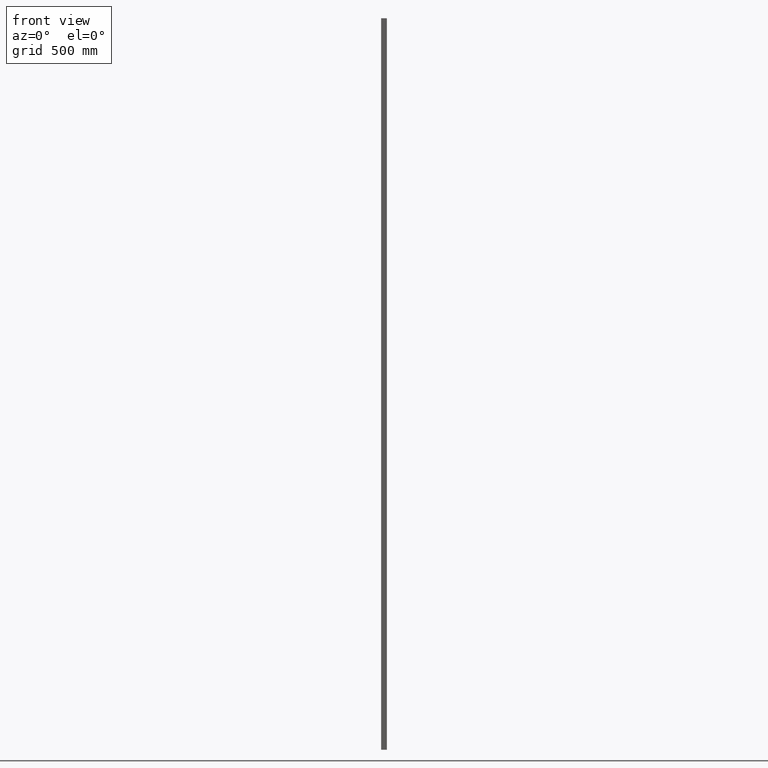
[diagram: clean part render]
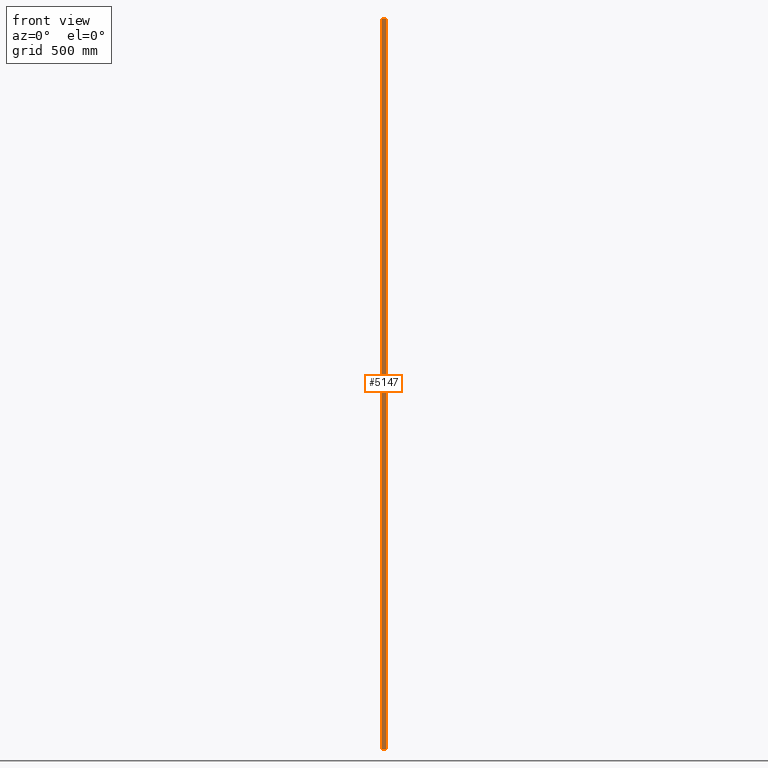
[diagram: same view with one face highlighted and labeled with its STEP entity id]
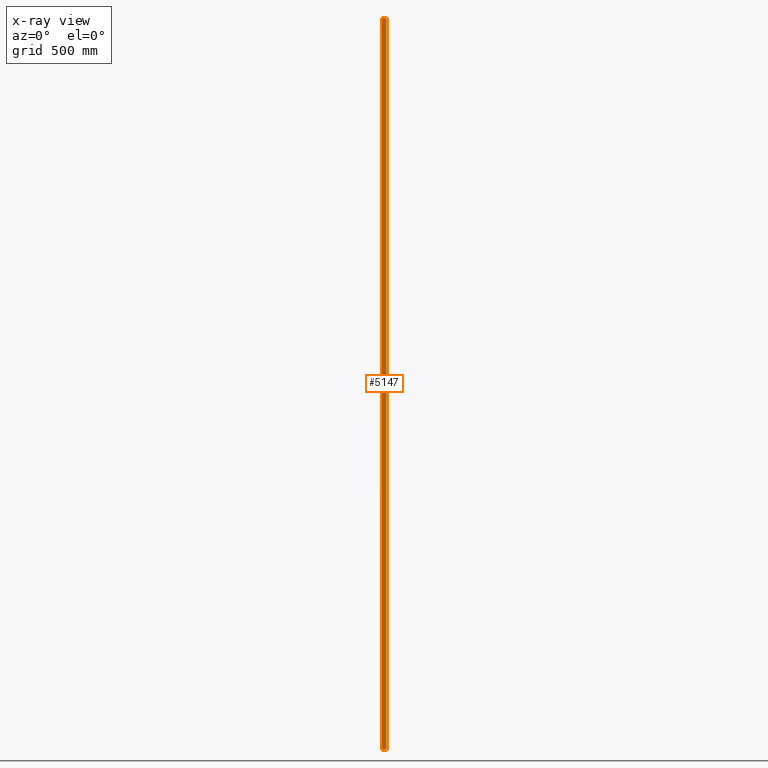
[diagram: x-ray of the same camera — body ghosted, the highlighted face saturated]
A machine part, front view. The second image highlights one B-rep face of the part: STEP entity #5147.
The next image is the same camera in x-ray: the body ghosted, the highlighted face saturated — about 0% of this face is hidden behind the body in this view.
In plain terms, the highlighted planar face has unit normal (0, 1, 0).
Its self-contained STEP definition (entity closure, byte-faithful):
#248 = VERTEX_POINT ( 'NONE', #12889 ) ;
#442 = ORIENTED_EDGE ( 'NONE', *, *, #9124, .F. ) ;
#733 = CARTESIAN_POINT ( 'NONE',  ( -9.000000000000001800, 9.000000000000001800, 1500.000000000000000 ) ) ;
#1185 = LINE ( 'NONE', #733, #15072 ) ;
#2345 = EDGE_CURVE ( 'NONE', #248, #12996, #9651, .T. ) ;
#2432 = EDGE_LOOP ( 'NONE', ( #11393, #442, #8925, #13536 ) ) ;
#2579 = DIRECTION ( 'NONE',  ( 1.000000000000000000, 0.0000000000000000000, 0.0000000000000000000 ) ) ;
#2581 = VERTEX_POINT ( 'NONE', #8385 ) ;
#2907 = CARTESIAN_POINT ( 'NONE',  ( -9.000000000000001800, 9.000000000000001800, 1500.000000000000000 ) ) ;
#3400 = PLANE ( 'NONE',  #14049 ) ;
#5147 = ADVANCED_FACE ( 'NONE', ( #7460 ), #3400, .F. ) ;
#6171 = LINE ( 'NONE', #7329, #8281 ) ;
#6581 = VECTOR ( 'NONE', #2579, 1000.000000000000000 ) ;
#7329 = CARTESIAN_POINT ( 'NONE',  ( 9.000000000000000000, 9.000000000000001800, 1500.000000000000000 ) ) ;
#7460 = FACE_OUTER_BOUND ( 'NONE', #2432, .T. ) ;
#8281 = VECTOR ( 'NONE', #15827, 1000.000000000000000 ) ;
#8385 = CARTESIAN_POINT ( 'NONE',  ( 9.000000000000000000, 9.000000000000001800, 1500.000000000000000 ) ) ;
#8516 = EDGE_CURVE ( 'NONE', #248, #2581, #1185, .T. ) ;
#8774 = CARTESIAN_POINT ( 'NONE',  ( 9.000000000000000000, 9.000000000000001800, -1500.000000000000000 ) ) ;
#8925 = ORIENTED_EDGE ( 'NONE', *, *, #8516, .F. ) ;
#9124 = EDGE_CURVE ( 'NONE', #2581, #10720, #6171, .T. ) ;
#9651 = LINE ( 'NONE', #2907, #12156 ) ;
#10720 = VERTEX_POINT ( 'NONE', #8774 ) ;
#11393 = ORIENTED_EDGE ( 'NONE', *, *, #15631, .T. ) ;
#12030 = DIRECTION ( 'NONE',  ( 1.000000000000000000, 0.0000000000000000000, 0.0000000000000000000 ) ) ;
#12072 = CARTESIAN_POINT ( 'NONE',  ( -9.000000000000001800, 9.000000000000001800, -1500.000000000000000 ) ) ;
#12156 = VECTOR ( 'NONE', #14232, 1000.000000000000000 ) ;
#12889 = CARTESIAN_POINT ( 'NONE',  ( -9.000000000000001800, 9.000000000000001800, 1500.000000000000000 ) ) ;
#12996 = VERTEX_POINT ( 'NONE', #12072 ) ;
#13153 = DIRECTION ( 'NONE',  ( 0.0000000000000000000, 1.000000000000000000, 0.0000000000000000000 ) ) ;
#13169 = LINE ( 'NONE', #13447, #6581 ) ;
#13447 = CARTESIAN_POINT ( 'NONE',  ( -9.000000000000001800, 9.000000000000001800, -1500.000000000000000 ) ) ;
#13536 = ORIENTED_EDGE ( 'NONE', *, *, #2345, .T. ) ;
#14049 = AXIS2_PLACEMENT_3D ( 'NONE', #14505, #13153, #15703 ) ;
#14232 = DIRECTION ( 'NONE',  ( -0.0000000000000000000, -0.0000000000000000000, -1.000000000000000000 ) ) ;
#14505 = CARTESIAN_POINT ( 'NONE',  ( -9.000000000000001800, 9.000000000000001800, 1500.000000000000000 ) ) ;
#15072 = VECTOR ( 'NONE', #12030, 1000.000000000000000 ) ;
#15631 = EDGE_CURVE ( 'NONE', #12996, #10720, #13169, .T. ) ;
#15703 = DIRECTION ( 'NONE',  ( 0.0000000000000000000, -0.0000000000000000000, 1.000000000000000000 ) ) ;
#15827 = DIRECTION ( 'NONE',  ( -0.0000000000000000000, -0.0000000000000000000, -1.000000000000000000 ) ) ;